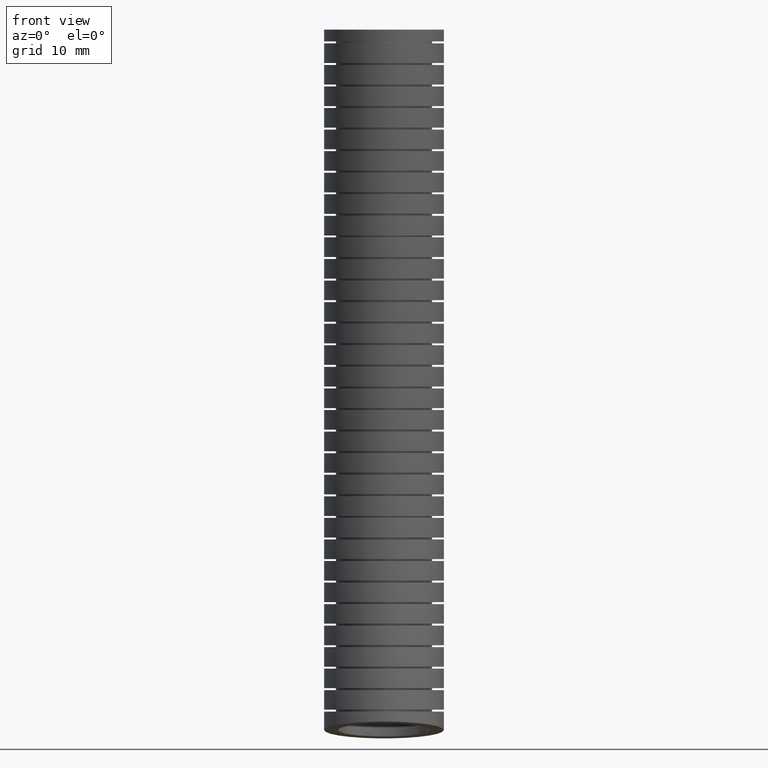
[diagram: clean part render]
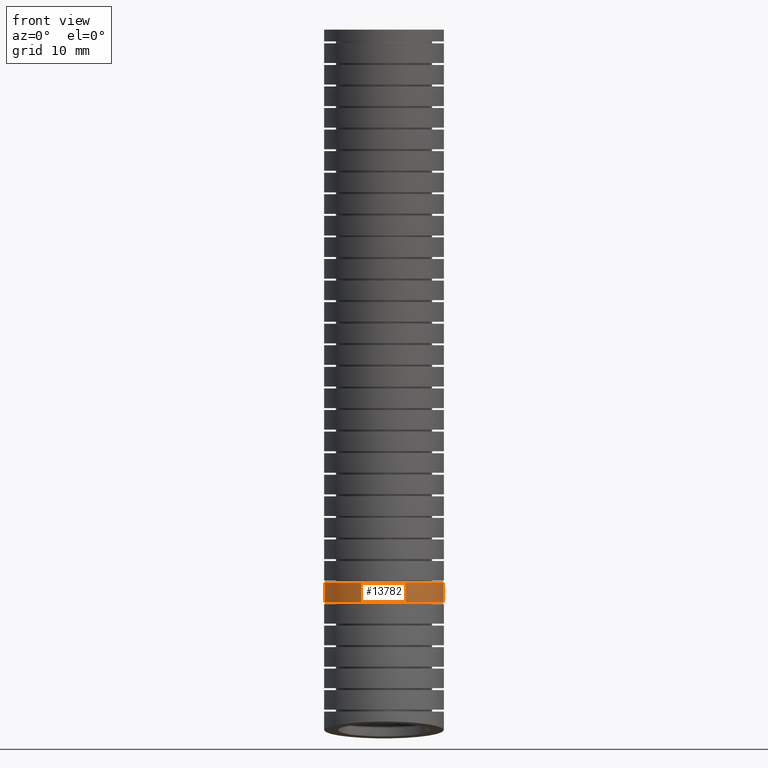
[diagram: same view with one face highlighted and labeled with its STEP entity id]
A machine part, front view. The second image highlights one B-rep face of the part: STEP entity #13782.
In plain terms, the highlighted face is a freeform B-spline surface patch.
Its self-contained STEP definition (entity closure, byte-faithful):
#1572 = CARTESIAN_POINT ( 'NONE',  ( -0.3049999999999999900, 0.03188064559132994900, -2.818529488686111900 ) ) ;
#1583 = CARTESIAN_POINT ( 'NONE',  ( 0.3049999999999999400, 0.03188064561377214300, -2.818529488494412800 ) ) ;
#1705 = FACE_OUTER_BOUND ( 'NONE', #13773, .T. ) ;
#1718 = CARTESIAN_POINT ( 'NONE',  ( 0.3049999999999999900, -0.02999999999999999900, -3.569999999999999400 ) ) ;
#1719 = CARTESIAN_POINT ( 'NONE',  ( 0.3049999999999999400, -0.01189670328115252300, -3.380058092153300100 ) ) ;
#1720 = CARTESIAN_POINT ( 'NONE',  ( 0.3049999999999999900, 0.03783273064349424600, -2.858291051460112500 ) ) ;
#1721 = CARTESIAN_POINT ( 'NONE',  ( 0.3049999999999999900, 0.07694042471324438700, -1.669468061939300500 ) ) ;
#1722 = CARTESIAN_POINT ( 'NONE',  ( 0.3050000000000000500, 0.03078003440073750300, -0.6678710777714059700 ) ) ;
#1723 = CARTESIAN_POINT ( 'NONE',  ( 0.3050000000000000500, 0.0000000000000000000, 0.0000000000000000000 ) ) ;
#1729 =( BOUNDED_SURFACE ( )  B_SPLINE_SURFACE ( 3, 3, ( 
 ( #1723, #1722, #1721, #1720, #1719, #1718 ),
 ( #1770, #1769, #1768, #1767, #1766, #1765 ),
 ( #1764, #1763, #1762, #1761, #1760, #1759 ),
 ( #1758, #1757, #1756, #1755, #1754, #1753 ),
 ( #1752, #1751, #1750, #1749, #1748, #1747 ),
 ( #1745, #1744, #1743, #1742, #1740, #1739 ),
 ( #1738, #1737, #1736, #1735, #1734, #1733 ) ),
 .UNSPECIFIED., .F., .F., .F. ) 
 B_SPLINE_SURFACE_WITH_KNOTS ( ( 4, 3, 4 ),
 ( 4, 1, 1, 4 ),
 ( 0.0000000000000000000, 0.5000000000000000000, 1.000000000000000000 ),
 ( 0.0000000000000000000, 0.5599999999999999400, 0.8398242262648183400, 1.000000000000000000 ),
 .UNSPECIFIED. ) 
 GEOMETRIC_REPRESENTATION_ITEM ( )  RATIONAL_B_SPLINE_SURFACE ( (
 ( 1.000000000000000000, 1.000000000000000000, 1.000000000000000200, 1.000000000000000000, 1.000000000000000000, 1.000000000000000000),
 ( 0.3333333333333333100, 0.3333333333333333100, 0.3333333333333333100, 0.3333333333333333100, 0.3333333333333333100, 0.3333333333333333100),
 ( 0.3333333333333333100, 0.3333333333333333100, 0.3333333333333333100, 0.3333333333333333100, 0.3333333333333333100, 0.3333333333333333100),
 ( 1.000000000000000000, 1.000000000000000000, 1.000000000000000200, 1.000000000000000000, 1.000000000000000000, 1.000000000000000000),
 ( 0.3333333333333333100, 0.3333333333333333100, 0.3333333333333333100, 0.3333333333333333100, 0.3333333333333333100, 0.3333333333333333100),
 ( 0.3333333333333333100, 0.3333333333333333100, 0.3333333333333333100, 0.3333333333333333100, 0.3333333333333333100, 0.3333333333333333100),
 ( 1.000000000000000000, 1.000000000000000000, 1.000000000000000200, 1.000000000000000000, 1.000000000000000000, 1.000000000000000000) ) ) 
 REPRESENTATION_ITEM ( '' )  SURFACE ( )  );
#1733 = CARTESIAN_POINT ( 'NONE',  ( 0.3049999999999999900, -0.02999999999999999900, -3.569999999999999400 ) ) ;
#1734 = CARTESIAN_POINT ( 'NONE',  ( 0.3049999999999999400, -0.01189670328115252300, -3.380058092153300100 ) ) ;
#1735 = CARTESIAN_POINT ( 'NONE',  ( 0.3049999999999999900, 0.03783273064349424600, -2.858291051460112500 ) ) ;
#1736 = CARTESIAN_POINT ( 'NONE',  ( 0.3049999999999999900, 0.07694042471324438700, -1.669468061939300500 ) ) ;
#1737 = CARTESIAN_POINT ( 'NONE',  ( 0.3050000000000000500, 0.03078003440073750300, -0.6678710777714059700 ) ) ;
#1738 = CARTESIAN_POINT ( 'NONE',  ( 0.3050000000000000500, 0.0000000000000000000, 0.0000000000000000000 ) ) ;
#1739 = CARTESIAN_POINT ( 'NONE',  ( 0.3049999999999999400, 0.5739397472009051300, -3.655771683852579600 ) ) ;
#1740 = CARTESIAN_POINT ( 'NONE',  ( 0.3049999999999999400, 0.5927977391964371900, -3.458550284486119800 ) ) ;
#1742 = CARTESIAN_POINT ( 'NONE',  ( 0.3049999999999999400, 0.6446003076157559300, -2.916786610132277200 ) ) ;
#1743 = CARTESIAN_POINT ( 'NONE',  ( 0.3050000000000000500, 0.6875905811525232500, -1.687708987936889400 ) ) ;
#1744 = CARTESIAN_POINT ( 'NONE',  ( 0.3050000000000000500, 0.6410401296320993300, -0.6751683643642422100 ) ) ;
#1745 = CARTESIAN_POINT ( 'NONE',  ( 0.3050000000000000500, 0.6100000000000001000, 0.0000000000000000000 ) ) ;
#1747 = CARTESIAN_POINT ( 'NONE',  ( -0.3049999999999998800, 0.5739397472009051300, -3.655771683852579600 ) ) ;
#1748 = CARTESIAN_POINT ( 'NONE',  ( -0.3049999999999998800, 0.5927977391964373000, -3.458550284486119800 ) ) ;
#1749 = CARTESIAN_POINT ( 'NONE',  ( -0.3049999999999999400, 0.6446003076157562600, -2.916786610132277200 ) ) ;
#1750 = CARTESIAN_POINT ( 'NONE',  ( -0.3049999999999999400, 0.6875905811525234700, -1.687708987936889400 ) ) ;
#1751 = CARTESIAN_POINT ( 'NONE',  ( -0.3049999999999999400, 0.6410401296320996600, -0.6751683643642422100 ) ) ;
#1752 = CARTESIAN_POINT ( 'NONE',  ( -0.3049999999999999400, 0.6100000000000001000, 0.0000000000000000000 ) ) ;
#1753 = CARTESIAN_POINT ( 'NONE',  ( -0.3049999999999999900, -0.02999999999999996100, -3.569999999999999400 ) ) ;
#1754 = CARTESIAN_POINT ( 'NONE',  ( -0.3049999999999999400, -0.01189670328115248300, -3.380058092153300100 ) ) ;
#1755 = CARTESIAN_POINT ( 'NONE',  ( -0.3049999999999999900, 0.03783273064349428100, -2.858291051460112500 ) ) ;
#1756 = CARTESIAN_POINT ( 'NONE',  ( -0.3049999999999999900, 0.07694042471324441500, -1.669468061939300500 ) ) ;
#1757 = CARTESIAN_POINT ( 'NONE',  ( -0.3050000000000000500, 0.03078003440073754200, -0.6678710777714059700 ) ) ;
#1758 = CARTESIAN_POINT ( 'NONE',  ( -0.3050000000000000500, 3.735172737399427600E-017, 0.0000000000000000000 ) ) ;
#1759 = CARTESIAN_POINT ( 'NONE',  ( -0.3050000000000000500, -0.6339397472009050700, -3.484228316147418800 ) ) ;
#1760 = CARTESIAN_POINT ( 'NONE',  ( -0.3050000000000000500, -0.6165911457587421900, -3.301565899820480900 ) ) ;
#1761 = CARTESIAN_POINT ( 'NONE',  ( -0.3050000000000000500, -0.5689348463287677800, -2.799795492787948300 ) ) ;
#1762 = CARTESIAN_POINT ( 'NONE',  ( -0.3050000000000001000, -0.5337097317260344200, -1.651227135941712300 ) ) ;
#1763 = CARTESIAN_POINT ( 'NONE',  ( -0.3050000000000001600, -0.5794800608306244200, -0.6605737911785694000 ) ) ;
#1764 = CARTESIAN_POINT ( 'NONE',  ( -0.3050000000000001000, -0.6100000000000001000, 0.0000000000000000000 ) ) ;
#1765 = CARTESIAN_POINT ( 'NONE',  ( 0.3049999999999999400, -0.6339397472009050700, -3.484228316147418800 ) ) ;
#1766 = CARTESIAN_POINT ( 'NONE',  ( 0.3049999999999999400, -0.6165911457587421900, -3.301565899820480900 ) ) ;
#1767 = CARTESIAN_POINT ( 'NONE',  ( 0.3049999999999999400, -0.5689348463287677800, -2.799795492787948300 ) ) ;
#1768 = CARTESIAN_POINT ( 'NONE',  ( 0.3050000000000000500, -0.5337097317260344200, -1.651227135941712300 ) ) ;
#1769 = CARTESIAN_POINT ( 'NONE',  ( 0.3050000000000000500, -0.5794800608306244200, -0.6605737911785694000 ) ) ;
#1770 = CARTESIAN_POINT ( 'NONE',  ( 0.3050000000000000500, -0.6100000000000001000, 0.0000000000000000000 ) ) ;
#1771 = CARTESIAN_POINT ( 'NONE',  ( 0.1349306863572424200, -0.2419254384981739900, -2.818529488686108800 ) ) ;
#1772 = CARTESIAN_POINT ( 'NONE',  ( 0.1525436143649990800, -0.2325108698666177300, -2.818529488686108800 ) ) ;
#1773 = CARTESIAN_POINT ( 'NONE',  ( 0.1612094280442781500, -0.2273159539717582700, -2.818529488686109200 ) ) ;
#1774 = CARTESIAN_POINT ( 'NONE',  ( 0.1862179651562945200, -0.2105857757065454900, -2.818529488686110100 ) ) ;
#1775 = CARTESIAN_POINT ( 'NONE',  ( 0.2015748986684515200, -0.1979544182335845600, -2.818529488686111400 ) ) ;
#1776 = CARTESIAN_POINT ( 'NONE',  ( 0.2297194429091216900, -0.1698050187466689800, -2.818529488686111400 ) ) ;
#1777 = CARTESIAN_POINT ( 'NONE',  ( 0.2426031111747050400, -0.1541004553729400900, -2.818529488686111900 ) ) ;
#1778 = CARTESIAN_POINT ( 'NONE',  ( 0.2647364906836088800, -0.1209335864093826800, -2.818529488686111400 ) ) ;
#1779 = CARTESIAN_POINT ( 'NONE',  ( 0.2741046285561150000, -0.1034088268460912200, -2.818529488686111900 ) ) ;
#1780 = CARTESIAN_POINT ( 'NONE',  ( 0.2855861201542668200, -0.07569701585532884200, -2.818529488686112300 ) ) ;
#1781 = CARTESIAN_POINT ( 'NONE',  ( 0.2889936819301062200, -0.06617056983434112200, -2.818529488686112300 ) ) ;
#1782 = CARTESIAN_POINT ( 'NONE',  ( 0.2947989617522751000, -0.04700378033441406100, -2.818529488686111900 ) ) ;
#1783 = CARTESIAN_POINT ( 'NONE',  ( 0.2972131381265930000, -0.03733720218945734600, -2.818529488686110100 ) ) ;
#1784 = CARTESIAN_POINT ( 'NONE',  ( 0.3030229608265990700, -0.008093483556548139400, -2.818529488686110500 ) ) ;
#1785 = CARTESIAN_POINT ( 'NONE',  ( 0.3049999999999999400, 0.01172524007980071300, -2.818529488494411400 ) ) ;
#1786 = CARTESIAN_POINT ( 'NONE',  ( 0.3049999999999999400, 0.03188064561377214300, -2.818529488494412800 ) ) ;
#1787 = B_SPLINE_CURVE_WITH_KNOTS ( 'NONE', 3,
 ( #1786, #1785, #1784, #1783, #1782, #1781, #1780, #1779, #1778, #1777, #1776, #1775, #1774, #1773, #1772, #1771, #1841, #1840, #1839, #1838, #1836, #1835, #1834, #1833, #1832, #1831, #1830, #1829, #1828, #1827, #1826, #1825, #1824, #1823, #1822, #1821, #1820, #1819, #1818, #1817, #1816, #1815, #1814 ),
 .UNSPECIFIED., .F., .F.,
 ( 4, 2, 2, 2, 2, 2, 2, 2, 1, 2, 2, 2, 2, 2, 2, 2, 2, 2, 2, 2, 2, 4 ),
 ( 0.0000000000000000000, 0.001514044604538001500, 0.002271066906807002300, 0.003028089209076002900, 0.004542133813614004600, 0.006056178418152005800, 0.007570223022690007000, 0.008327245324959008100, 0.009084267627228009200, 0.009841289929497010200, 0.01059831223176601100, 0.01211235683630401200, 0.01362640144084201500, 0.01514044604538001400, 0.01589746834764901500, 0.01665449064991801600, 0.01816853525445601800, 0.01968257985899402400, 0.02043960216126302800, 0.02119662446353203300, 0.02271066906807003500, 0.02422471367260804100 ),
 .UNSPECIFIED. ) ;
#1814 = CARTESIAN_POINT ( 'NONE',  ( -0.3049999999999999900, 0.03188064559132994900, -2.818529488686111900 ) ) ;
#1815 = CARTESIAN_POINT ( 'NONE',  ( -0.3050000000000001000, 0.01197131057100563400, -2.818529488686111400 ) ) ;
#1816 = CARTESIAN_POINT ( 'NONE',  ( -0.3030059995815500000, -0.008247675141410306500, -2.818529488686111900 ) ) ;
#1817 = CARTESIAN_POINT ( 'NONE',  ( -0.2952129054967614400, -0.04733583112513967100, -2.818529488686111400 ) ) ;
#1818 = CARTESIAN_POINT ( 'NONE',  ( -0.2894495699660680200, -0.06635535802493182400, -2.818529488686111400 ) ) ;
#1819 = CARTESIAN_POINT ( 'NONE',  ( -0.2779698220548095200, -0.09408811015243746800, -2.818529488686111400 ) ) ;
#1820 = CARTESIAN_POINT ( 'NONE',  ( -0.2736431051179498100, -0.1032357193020865700, -2.818529488686112300 ) ) ;
#1821 = CARTESIAN_POINT ( 'NONE',  ( -0.2642036129545200000, -0.1208833545780225300, -2.818529488686111400 ) ) ;
#1822 = CARTESIAN_POINT ( 'NONE',  ( -0.2590788231975187900, -0.1294233602941071100, -2.818529488686110500 ) ) ;
#1823 = CARTESIAN_POINT ( 'NONE',  ( -0.2425143974772667500, -0.1542095112975062900, -2.818529488686110500 ) ) ;
#1824 = CARTESIAN_POINT ( 'NONE',  ( -0.2298705944475794300, -0.1696558440084716400, -2.818529488686111900 ) ) ;
#1825 = CARTESIAN_POINT ( 'NONE',  ( -0.2013933923679512300, -0.1981339508342147600, -2.818529488686110500 ) ) ;
#1826 = CARTESIAN_POINT ( 'NONE',  ( -0.1859884185589864000, -0.2107473181941789100, -2.818529488686111400 ) ) ;
#1827 = CARTESIAN_POINT ( 'NONE',  ( -0.1611969863789459400, -0.2273202560305747600, -2.818529488686111400 ) ) ;
#1828 = CARTESIAN_POINT ( 'NONE',  ( -0.1526504433541950900, -0.2324504974110759800, -2.818529488686110500 ) ) ;
#1829 = CARTESIAN_POINT ( 'NONE',  ( -0.1349779560325107800, -0.2419034128212816100, -2.818529488686111400 ) ) ;
#1830 = CARTESIAN_POINT ( 'NONE',  ( -0.1258356307211106800, -0.2462259971682978800, -2.818529488686114100 ) ) ;
#1831 = CARTESIAN_POINT ( 'NONE',  ( -0.09813735309471011100, -0.2576900338093549600, -2.818529488686114100 ) ) ;
#1832 = CARTESIAN_POINT ( 'NONE',  ( -0.07912149245288595300, -0.2634546039589282800, -2.818529488686111400 ) ) ;
#1833 = CARTESIAN_POINT ( 'NONE',  ( -0.03999506358914844300, -0.2712478992806712800, -2.818529488686110500 ) ) ;
#1834 = CARTESIAN_POINT ( 'NONE',  ( -0.01978667403663875900, -0.2732322209722415900, -2.818529488686111400 ) ) ;
#1835 = CARTESIAN_POINT ( 'NONE',  ( 0.02000589948027179500, -0.2732179145734813800, -2.818529488686110500 ) ) ;
#1836 = CARTESIAN_POINT ( 'NONE',  ( 0.03980113867071998600, -0.2712820185131099000, -2.818529488686111900 ) ) ;
#1838 = CARTESIAN_POINT ( 'NONE',  ( 0.06933825762115918000, -0.2654054943145242000, -2.818529488686111900 ) ) ;
#1839 = CARTESIAN_POINT ( 'NONE',  ( 0.07912514287022648400, -0.2629477870478022000, -2.818529488686109600 ) ) ;
#1840 = CARTESIAN_POINT ( 'NONE',  ( 0.09822113419857468600, -0.2571431269154629800, -2.818529488686110100 ) ) ;
#1841 = CARTESIAN_POINT ( 'NONE',  ( 0.1169440090236859400, -0.2504302679102011200, -2.818529488686116300 ) ) ;
#1928 = B_SPLINE_CURVE_WITH_KNOTS ( 'NONE', 3,
 ( #1938, #1937, #1936, #1935 ),
 .UNSPECIFIED., .F., .F.,
 ( 4, 4 ),
 ( 0.7888748941454075700, 0.8168872890237076600 ),
 .UNSPECIFIED. ) ;
#1935 = CARTESIAN_POINT ( 'NONE',  ( -0.3049999999999999900, 0.02566286733464084200, -2.918316295423142300 ) ) ;
#1936 = CARTESIAN_POINT ( 'NONE',  ( -0.3049999999999999400, 0.02786221183231316100, -2.885059151895595700 ) ) ;
#1937 = CARTESIAN_POINT ( 'NONE',  ( -0.3049999999999999400, 0.02993333899078461100, -2.851796823719910700 ) ) ;
#1938 = CARTESIAN_POINT ( 'NONE',  ( -0.3049999999999999900, 0.03188064559132994900, -2.818529488686111900 ) ) ;
#1960 = CARTESIAN_POINT ( 'NONE',  ( 0.09828212570415639800, -0.2640094735646430500, -2.918316295423144100 ) ) ;
#1961 = CARTESIAN_POINT ( 'NONE',  ( 0.07924821674783429100, -0.2698089943641681100, -2.918316295423142300 ) ) ;
#1962 = CARTESIAN_POINT ( 'NONE',  ( 0.04968317393448289100, -0.2756991108644969400, -2.918316295423142700 ) ) ;
#1963 = CARTESIAN_POINT ( 'NONE',  ( 0.03971479324071723600, -0.2771743369563123300, -2.918316295423145400 ) ) ;
#1964 = CARTESIAN_POINT ( 'NONE',  ( 0.01985973875105782200, -0.2791246174593175500, -2.918316295423145000 ) ) ;
#1965 = CARTESIAN_POINT ( 'NONE',  ( -4.225738891147493600E-006, -0.2800937709797842200, -2.918316295423133400 ) ) ;
#1966 = CARTESIAN_POINT ( 'NONE',  ( -0.01988580286487769100, -0.2791235045356522100, -2.918316295423144500 ) ) ;
#1967 = CARTESIAN_POINT ( 'NONE',  ( -0.03977633787793803700, -0.2771668380434834100, -2.918316295423143200 ) ) ;
#1968 = CARTESIAN_POINT ( 'NONE',  ( -0.04978059434749847900, -0.2756821296303486600, -2.918316295423143200 ) ) ;
#1969 = CARTESIAN_POINT ( 'NONE',  ( -0.07926711744076107800, -0.2698003475385307200, -2.918316295423141900 ) ) ;
#1970 = CARTESIAN_POINT ( 'NONE',  ( -0.09828736278844960000, -0.2640090174905083100, -2.918316295423143200 ) ) ;
#1971 = CARTESIAN_POINT ( 'NONE',  ( -0.1350784210085781400, -0.2487607132943536200, -2.918316295423144100 ) ) ;
#1972 = CARTESIAN_POINT ( 'NONE',  ( -0.1529951185651653700, -0.2391731067035513000, -2.918316295423144100 ) ) ;
#1973 = CARTESIAN_POINT ( 'NONE',  ( -0.1861174802849895100, -0.2170005063736651100, -2.918316295423143200 ) ) ;
#1974 = CARTESIAN_POINT ( 'NONE',  ( -0.2014795652875955900, -0.2043887129222463600, -2.918316295423144100 ) ) ;
#1975 = CARTESIAN_POINT ( 'NONE',  ( -0.2227019675575183100, -0.1831546907320857600, -2.918316295423143200 ) ) ;
#1976 = CARTESIAN_POINT ( 'NONE',  ( -0.2294944676476213000, -0.1756521390411661900, -2.918316295423143200 ) ) ;
#1977 = CARTESIAN_POINT ( 'NONE',  ( -0.2421788377778008300, -0.1601710017868147000, -2.918316295423143200 ) ) ;
#1978 = CARTESIAN_POINT ( 'NONE',  ( -0.2481039729701637600, -0.1521648697423907400, -2.918316295423143200 ) ) ;
#1979 = CARTESIAN_POINT ( 'NONE',  ( -0.2646542178444879500, -0.1273663322299204400, -2.918316295423142300 ) ) ;
#1981 = CARTESIAN_POINT ( 'NONE',  ( -0.2740809136746938400, -0.1097659339333489500, -2.918316295423143200 ) ) ;
#1982 = CARTESIAN_POINT ( 'NONE',  ( -0.2894828417493622900, -0.07255106559524082700, -2.918316295423142700 ) ) ;
#1983 = CARTESIAN_POINT ( 'NONE',  ( -0.2952376170352311000, -0.05348882951630119800, -2.918316295423144100 ) ) ;
#1984 = CARTESIAN_POINT ( 'NONE',  ( -0.3010608615937908100, -0.02423906350642571200, -2.918316295423144100 ) ) ;
#1985 = CARTESIAN_POINT ( 'NONE',  ( -0.3025303375787764000, -0.01437893271806284400, -2.918316295423142300 ) ) ;
#1986 = CARTESIAN_POINT ( 'NONE',  ( -0.3045030392203905700, 0.005567130438512330600, -2.918316295423144100 ) ) ;
#1987 = CARTESIAN_POINT ( 'NONE',  ( -0.3049999999999999400, 0.01566898541759624200, -2.918316295423141900 ) ) ;
#1988 = CARTESIAN_POINT ( 'NONE',  ( -0.3049999999999999900, 0.02566286733464084200, -2.918316295423142300 ) ) ;
#1990 = B_SPLINE_CURVE_WITH_KNOTS ( 'NONE', 3,
 ( #1988, #1987, #1986, #1985, #1984, #1983, #1982, #1981, #1979, #1978, #1977, #1976, #1975, #1974, #1973, #1972, #1971, #1970, #1969, #1968, #1967, #1966, #1965, #1964, #1963, #1962, #1961, #1960, #2037, #2036, #2035, #2034, #2033, #2032, #2031, #2030, #2029, #2028, #2027, #2026, #2025, #2024, #2023, #2022, #2021 ),
 .UNSPECIFIED., .F., .F.,
 ( 4, 2, 2, 2, 2, 2, 2, 2, 2, 2, 2, 1, 2, 2, 2, 2, 2, 2, 2, 2, 2, 2, 4 ),
 ( 0.02448892781998156600, 0.02525428777569519600, 0.02601964773140882200, 0.02755036764283608200, 0.02908108755426334200, 0.02984644750997696900, 0.03061180746569060200, 0.03214252737711786200, 0.03367324728854512200, 0.03520396719997238200, 0.03596932715568601500, 0.03673468711139964100, 0.03750004706711328200, 0.03826540702282690800, 0.03979612693425416800, 0.04056148688996779500, 0.04132684684568142800, 0.04285756675710868100, 0.04362292671282231400, 0.04438828666853594100, 0.04591900657996320100, 0.04744972649139045400, 0.04898044640281771400 ),
 .UNSPECIFIED. ) ;
#1991 = CARTESIAN_POINT ( 'NONE',  ( -0.3049999999999999900, 0.02566286733464084200, -2.918316295423142300 ) ) ;
#1992 = CARTESIAN_POINT ( 'NONE',  ( 0.3049999999999999400, 0.02566286736003481000, -2.918316295231145700 ) ) ;
#1993 = CARTESIAN_POINT ( 'NONE',  ( 0.3049999999999999400, 0.02786221184455797300, -2.885059151702921400 ) ) ;
#1994 = CARTESIAN_POINT ( 'NONE',  ( 0.3049999999999999400, 0.02993333900253181800, -2.851796823527396300 ) ) ;
#1995 = CARTESIAN_POINT ( 'NONE',  ( 0.3049999999999999400, 0.03188064561377214300, -2.818529488494412800 ) ) ;
#1996 = B_SPLINE_CURVE_WITH_KNOTS ( 'NONE', 3,
 ( #1995, #1994, #1993, #1992 ),
 .UNSPECIFIED., .F., .F.,
 ( 4, 4 ),
 ( 0.7888748940914177600, 0.8168872889695667500 ),
 .UNSPECIFIED. ) ;
#1997 = CARTESIAN_POINT ( 'NONE',  ( 0.3049999999999999400, 0.02566286736003481000, -2.918316295231145700 ) ) ;
#2021 = CARTESIAN_POINT ( 'NONE',  ( 0.3049999999999999400, 0.02566286736003481000, -2.918316295231145700 ) ) ;
#2022 = CARTESIAN_POINT ( 'NONE',  ( 0.3050000000000000500, 0.005505096308027344200, -2.918316295231146600 ) ) ;
#2023 = CARTESIAN_POINT ( 'NONE',  ( 0.3029988487320730000, -0.01450862447644489000, -2.918316295423145000 ) ) ;
#2024 = CARTESIAN_POINT ( 'NONE',  ( 0.2952360916295780300, -0.05349254907625606400, -2.918316295423145400 ) ) ;
#2025 = CARTESIAN_POINT ( 'NONE',  ( 0.2894505459197924700, -0.07264289043427558900, -2.918316295423142700 ) ) ;
#2026 = CARTESIAN_POINT ( 'NONE',  ( 0.2740518450784210100, -0.1098223256460051200, -2.918316295423141000 ) ) ;
#2027 = CARTESIAN_POINT ( 'NONE',  ( 0.2646529957137158700, -0.1273698720659872100, -2.918316295423140500 ) ) ;
#2028 = CARTESIAN_POINT ( 'NONE',  ( 0.2480924543764328500, -0.1521812737105190900, -2.918316295423141900 ) ) ;
#2029 = CARTESIAN_POINT ( 'NONE',  ( 0.2421588945506777900, -0.1601982473411628900, -2.918316295423144100 ) ) ;
#2030 = CARTESIAN_POINT ( 'NONE',  ( 0.2294431781795183400, -0.1757118159033211100, -2.918316295423143200 ) ) ;
#2031 = CARTESIAN_POINT ( 'NONE',  ( 0.2226573945927773100, -0.1832013879898331300, -2.918316295423144100 ) ) ;
#2032 = CARTESIAN_POINT ( 'NONE',  ( 0.2014723036028739900, -0.2043917644393055700, -2.918316295423144100 ) ) ;
#2033 = CARTESIAN_POINT ( 'NONE',  ( 0.1861154172393196500, -0.2170046339829520300, -2.918316295423142300 ) ) ;
#2034 = CARTESIAN_POINT ( 'NONE',  ( 0.1612332298946996500, -0.2336570158677343500, -2.918316295423142300 ) ) ;
#2035 = CARTESIAN_POINT ( 'NONE',  ( 0.1525824287325014100, -0.2388512769989068200, -2.918316295423144100 ) ) ;
#2036 = CARTESIAN_POINT ( 'NONE',  ( 0.1348737659770228300, -0.2483215831865099900, -2.918316295423143200 ) ) ;
#2037 = CARTESIAN_POINT ( 'NONE',  ( 0.1258496638574873000, -0.2525864901042329000, -2.918316295423144100 ) ) ;
#13761 = VERTEX_POINT ( 'NONE', #1572 ) ;
#13765 = VERTEX_POINT ( 'NONE', #1583 ) ;
#13769 = ORIENTED_EDGE ( 'NONE', *, *, #13788, .T. ) ;
#13773 = EDGE_LOOP ( 'NONE', ( #13769, #13811, #13812, #13808 ) ) ;
#13782 = ADVANCED_FACE ( 'NONE', ( #1705 ), #1729, .T. ) ;
#13788 = EDGE_CURVE ( 'NONE', #13765, #13761, #1787, .T. ) ;
#13805 = EDGE_CURVE ( 'NONE', #13761, #13810, #1928, .T. ) ;
#13806 = EDGE_CURVE ( 'NONE', #13765, #13807, #1996, .T. ) ;
#13807 = VERTEX_POINT ( 'NONE', #1997 ) ;
#13808 = ORIENTED_EDGE ( 'NONE', *, *, #13806, .F. ) ;
#13809 = EDGE_CURVE ( 'NONE', #13810, #13807, #1990, .T. ) ;
#13810 = VERTEX_POINT ( 'NONE', #1991 ) ;
#13811 = ORIENTED_EDGE ( 'NONE', *, *, #13805, .T. ) ;
#13812 = ORIENTED_EDGE ( 'NONE', *, *, #13809, .T. ) ;